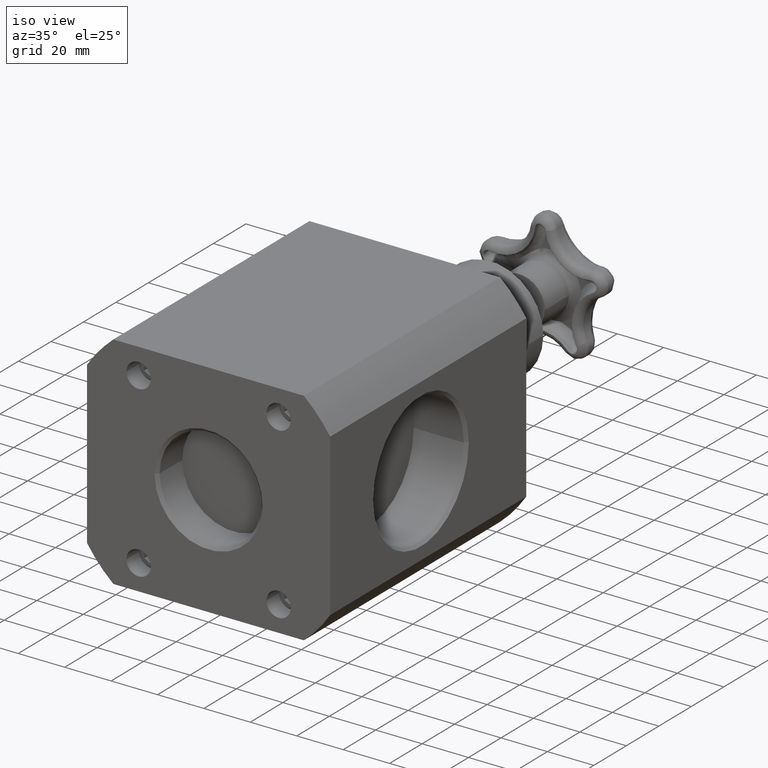
[diagram: clean part render]
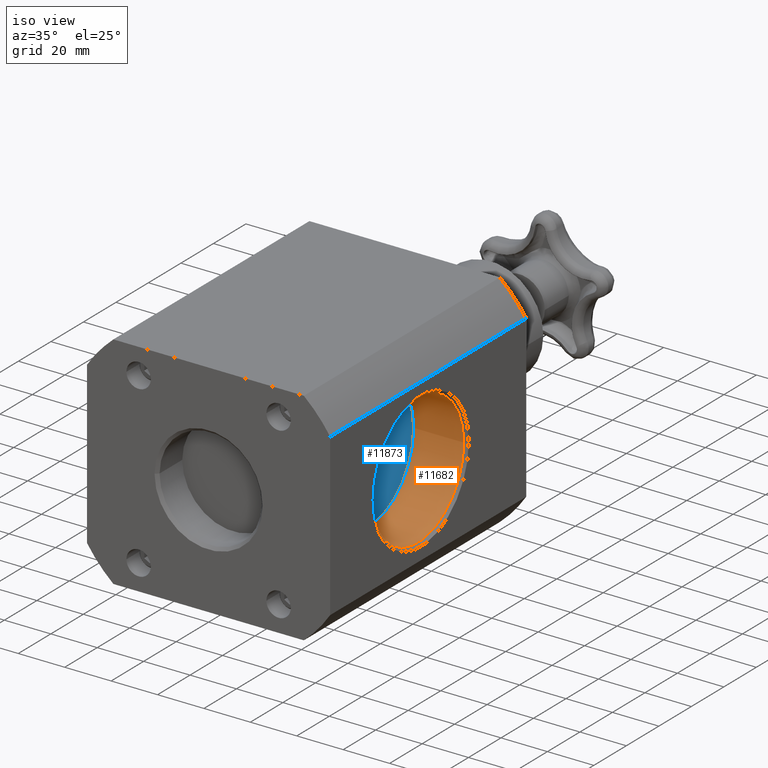
[diagram: same view with the hole feature highlighted: cylindrical wall and planar end face, labeled with their STEP entity ids]
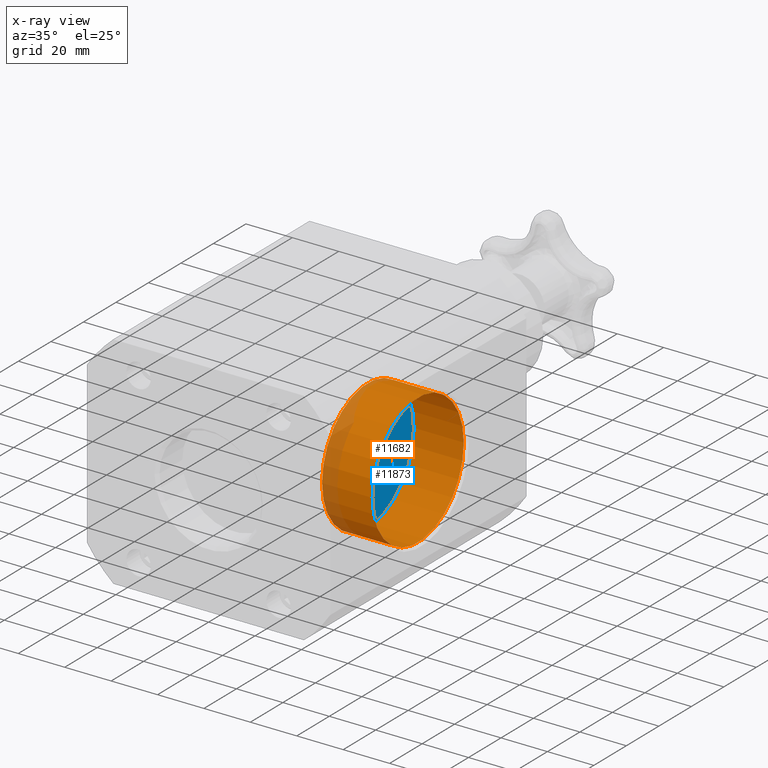
[diagram: x-ray of the same camera — body ghosted, the hole faces saturated]
A machine part, iso view. The highlighted faces form one hole feature of diameter 56.3562 mm: the cylindrical wall (entity #11682, orange) and its adjacent planar end face (entity #11873, blue) — they share a circular edge in the B-rep.
The next image is the same camera in x-ray (body ghosted, the hole faces saturated) — the bore reads through the body.
Wall:
#11640=CARTESIAN_POINT('',(2.012500000000000,3.307375000000000,9.743831E-016));
#11641=VERTEX_POINT('',#11640);
#11642=CARTESIAN_POINT('',(2.012500000000001,2.198000000000000,7.921357E-016));
#11643=DIRECTION('',(-1.0,0.0,0.0));
#11644=DIRECTION('',(0.0,-1.0,0.0));
#11645=AXIS2_PLACEMENT_3D('',#11642,#11643,#11644);
#11646=CIRCLE('',#11645,1.109375000000000);
#11647=EDGE_CURVE('',#11641,#11641,#11646,.T.);
#11663=CARTESIAN_POINT('',(1.612499999999999,2.198000000000000,7.599623E-016));
#11664=DIRECTION('',(1.0,1.156611E-017,8.043348E-017));
#11665=DIRECTION('',(0.0,1.0,0.0));
#11666=AXIS2_PLACEMENT_3D('',#11663,#11664,#11665);
#11667=CYLINDRICAL_SURFACE('',#11666,1.109375000000000);
#11668=CARTESIAN_POINT('',(1.162499999999999,3.307375000000000,1.041874E-015));
#11669=VERTEX_POINT('',#11668);
#11670=CARTESIAN_POINT('',(1.162499999999999,2.198000000000000,7.237672E-016));
#11671=DIRECTION('',(1.0,0.0,0.0));
#11672=DIRECTION('',(0.0,1.0,0.0));
#11673=AXIS2_PLACEMENT_3D('',#11670,#11671,#11672);
#11674=CIRCLE('',#11673,1.109375000000000);
#11675=EDGE_CURVE('',#11669,#11669,#11674,.T.);
#11676=ORIENTED_EDGE('',*,*,#11675,.F.);
#11677=EDGE_LOOP('',(#11676));
#11678=FACE_OUTER_BOUND('',#11677,.T.);
#11679=ORIENTED_EDGE('',*,*,#11647,.F.);
#11680=EDGE_LOOP('',(#11679));
#11681=FACE_BOUND('',#11680,.T.);
#11682=ADVANCED_FACE('',(#11678,#11681),#11667,.F.);
End face:
#11668=CARTESIAN_POINT('',(1.162499999999999,3.307375000000000,1.041874E-015));
#11669=VERTEX_POINT('',#11668);
#11670=CARTESIAN_POINT('',(1.162499999999999,2.198000000000000,7.237672E-016));
#11671=DIRECTION('',(1.0,0.0,0.0));
#11672=DIRECTION('',(0.0,1.0,0.0));
#11673=AXIS2_PLACEMENT_3D('',#11670,#11671,#11672);
#11674=CIRCLE('',#11673,1.109375000000000);
#11675=EDGE_CURVE('',#11669,#11669,#11674,.T.);
#11865=CARTESIAN_POINT('',(1.162499999999999,3.207437500000000,1.013217E-015));
#11866=DIRECTION('',(-1.0,0.0,0.0));
#11867=DIRECTION('',(0.0,0.0,1.0));
#11868=AXIS2_PLACEMENT_3D('',#11865,#11866,#11867);
#11869=PLANE('',#11868);
#11870=ORIENTED_EDGE('',*,*,#11675,.T.);
#11871=EDGE_LOOP('',(#11870));
#11872=FACE_OUTER_BOUND('',#11871,.T.);
#11873=ADVANCED_FACE('',(#11872),#11869,.F.);